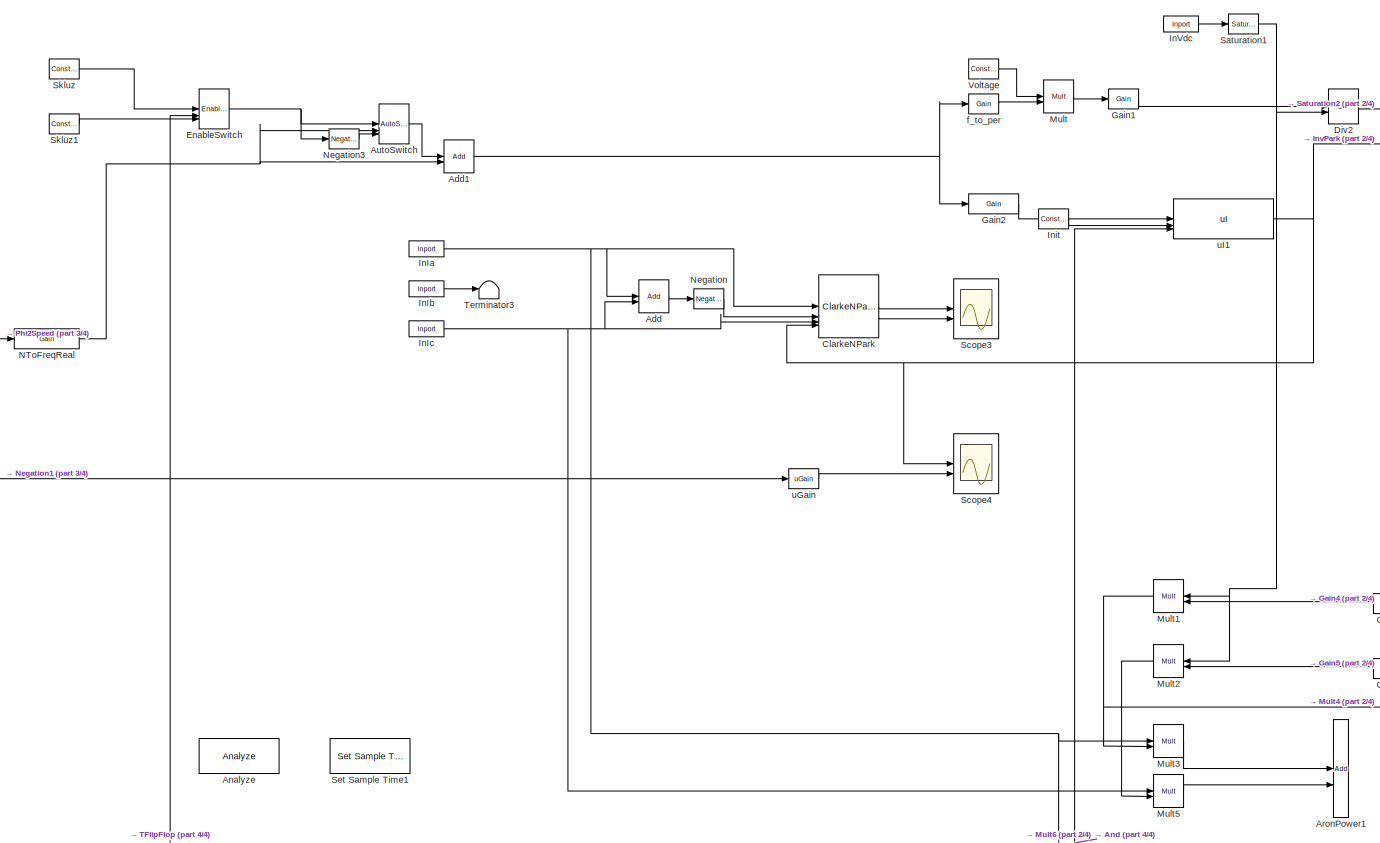
[diagram: root canvas - part 1/4, center side, full height]
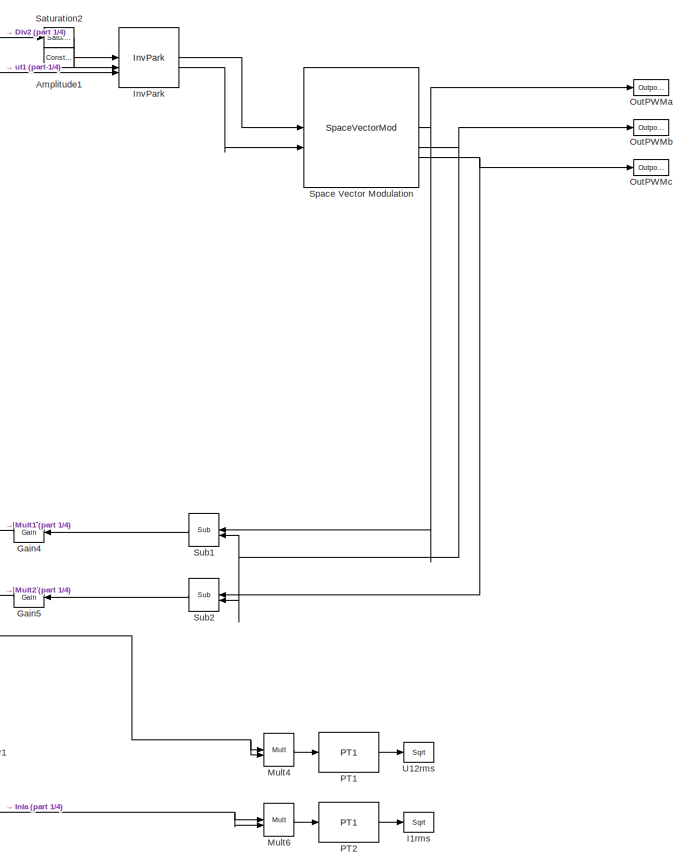
[diagram: root canvas - part 2/4, right side, full height]
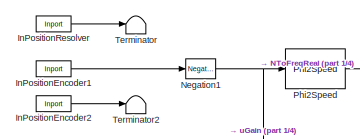
[diagram: root canvas - part 3/4, top left region]
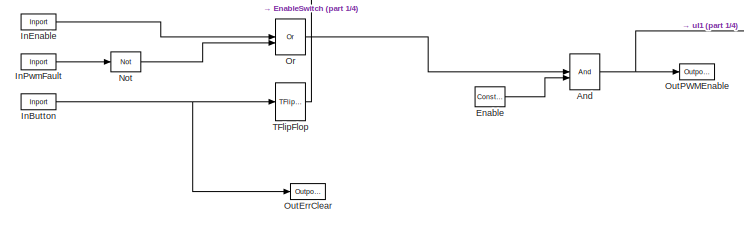
[diagram: root canvas - part 4/4, bottom left region]
MODEL slx_6c4d883dabac
KIND model
CONFIG AbsTol = auto
CONFIG EnableMultiTasking = on
CONFIG FixedStep = auto
CONFIG MaxStep = auto
CONFIG MinStep = auto
CONFIG RelTol = 1e-3
CONFIG SampleTimeConstraint = Unconstrained
CONFIG SolverName = ode45
CONFIG StartTime = 0.0
CONFIG StopTime = 10.0
BLOCK [Reference] Add  REF=Math/Add
  SourceBlock = Math/Add
  SourceProductName = X2C Math
  SourceType = X2C - Add
BLOCK [Reference] Add1  REF=Math/Add
  SourceBlock = Math/Add
  SourceProductName = X2C Math
  SourceType = X2C - Add
BLOCK [Reference] Amplitude1  REF=General/Constant
  SourceBlock = General/Constant
  SourceProductName = X2C General
  SourceType = X2C - Constant
BLOCK [Reference] Analyze  REF=Basic/Analyze
  SourceBlock = Basic/Analyze
  SourceProductName = X2C Basic
  SourceType = X2C System Block
BLOCK [Reference] And  REF=General/And
  SourceBlock = General/And
  SourceProductName = X2C General
  SourceType = X2C - And
BLOCK [Reference] AronPower1  REF=Math/Add
  SourceBlock = Math/Add
  SourceProductName = X2C Math
  SourceType = X2C - Add
BLOCK [Reference] AutoSwitch  REF=General/AutoSwitch
  SourceBlock = General/AutoSwitch
  SourceProductName = X2C General
  SourceType = X2C - AutoSwitch
BLOCK [Reference] ClarkeNPark  REF=MotorControl/ClarkeNPark
  SourceBlock = MotorControl/ClarkeNPark
  SourceProductName = X2C MotorControl
  SourceType = X2C - ClarkeNPark
BLOCK [Reference] Div2  REF=Math/Div
  SourceBlock = Math/Div
  SourceProductName = X2C Math
  SourceType = X2C - Div
BLOCK [Reference] Enable  REF=General/Constant
  SourceBlock = General/Constant
  SourceProductName = X2C General
  SourceType = X2C - Constant
BLOCK [Reference] EnableSwitch  REF=StateControl/EnableSwitch
  SourceBlock = StateControl/EnableSwitch
  SourceProductName = X2C StateControl
  SourceType = X2C - EnableSwitch
BLOCK [Reference] Gain1  REF=General/Gain
  SourceBlock = General/Gain
  SourceProductName = X2C General
  SourceType = X2C - Gain
BLOCK [Reference] Gain2  REF=General/Gain
  SourceBlock = General/Gain
  SourceProductName = X2C General
  SourceType = X2C - Gain
BLOCK [Reference] Gain4  REF=General/Gain
  SourceBlock = General/Gain
  SourceProductName = X2C General
  SourceType = X2C - Gain
BLOCK [Reference] Gain5  REF=General/Gain
  SourceBlock = General/Gain
  SourceProductName = X2C General
  SourceType = X2C - Gain
BLOCK [Reference] I1rms  REF=Math/Sqrt
  SourceBlock = Math/Sqrt
  SourceProductName = X2C Math
  SourceType = X2C - Sqrt
BLOCK [Reference] InButton  REF=General/Inport
  SourceBlock = General/Inport
  SourceProductName = X2C General
  SourceType = X2C - Inport
BLOCK [Reference] InEnable  REF=General/Inport
  SourceBlock = General/Inport
  SourceProductName = X2C General
  SourceType = X2C - Inport
BLOCK [Reference] InIa  REF=General/Inport
  SourceBlock = General/Inport
  SourceProductName = X2C General
  SourceType = X2C - Inport
BLOCK [Reference] InIb  REF=General/Inport
  SourceBlock = General/Inport
  SourceProductName = X2C General
  SourceType = X2C - Inport
BLOCK [Reference] InIc  REF=General/Inport
  SourceBlock = General/Inport
  SourceProductName = X2C General
  SourceType = X2C - Inport
BLOCK [Reference] InPositionEncoder1  REF=General/Inport
  SourceBlock = General/Inport
  SourceProductName = X2C General
  SourceType = X2C - Inport
BLOCK [Reference] InPositionEncoder2  REF=General/Inport
  SourceBlock = General/Inport
  SourceProductName = X2C General
  SourceType = X2C - Inport
BLOCK [Reference] InPositionResolver  REF=General/Inport
  SourceBlock = General/Inport
  SourceProductName = X2C General
  SourceType = X2C - Inport
BLOCK [Reference] InPwmFault  REF=General/Inport
  SourceBlock = General/Inport
  SourceProductName = X2C General
  SourceType = X2C - Inport
BLOCK [Reference] InVdc  REF=General/Inport
  SourceBlock = General/Inport
  SourceProductName = X2C General
  SourceType = X2C - Inport
BLOCK [Reference] Init  REF=General/Constant
  SourceBlock = General/Constant
  SourceProductName = X2C General
  SourceType = X2C - Constant
BLOCK [Reference] InvPark  REF=MotorControl/InvPark
  SourceBlock = MotorControl/InvPark
  SourceProductName = X2C MotorControl
  SourceType = X2C - InvPark
BLOCK [Reference] Mult  REF=Math/Mult
  SourceBlock = Math/Mult
  SourceProductName = X2C Math
  SourceType = X2C - Mult
BLOCK [Reference] Mult1  REF=Math/Mult
  SourceBlock = Math/Mult
  SourceProductName = X2C Math
  SourceType = X2C - Mult
BLOCK [Reference] Mult2  REF=Math/Mult
  SourceBlock = Math/Mult
  SourceProductName = X2C Math
  SourceType = X2C - Mult
BLOCK [Reference] Mult3  REF=Math/Mult
  SourceBlock = Math/Mult
  SourceProductName = X2C Math
  SourceType = X2C - Mult
BLOCK [Reference] Mult4  REF=Math/Mult
  SourceBlock = Math/Mult
  SourceProductName = X2C Math
  SourceType = X2C - Mult
BLOCK [Reference] Mult5  REF=Math/Mult
  SourceBlock = Math/Mult
  SourceProductName = X2C Math
  SourceType = X2C - Mult
BLOCK [Reference] Mult6  REF=Math/Mult
  SourceBlock = Math/Mult
  SourceProductName = X2C Math
  SourceType = X2C - Mult
BLOCK [Reference] NToFreqReal  REF=General/Gain
  SourceBlock = General/Gain
  SourceProductName = X2C General
  SourceType = X2C - Gain
BLOCK [Reference] Negation  REF=Math/Negation
  SourceBlock = Math/Negation
  SourceProductName = X2C Math
  SourceType = X2C - Negation
BLOCK [Reference] Negation1  REF=Math/Negation
  SourceBlock = Math/Negation
  SourceProductName = X2C Math
  SourceType = X2C - Negation
BLOCK [Reference] Negation3  REF=Math/Negation
  SourceBlock = Math/Negation
  SourceProductName = X2C Math
  SourceType = X2C - Negation
BLOCK [Reference] Not  REF=General/Not
  SourceBlock = General/Not
  SourceProductName = X2C General
  SourceType = X2C - Not
BLOCK [Reference] Or  REF=General/Or
  SourceBlock = General/Or
  SourceProductName = X2C General
  SourceType = X2C - Or
BLOCK [Reference] OutErrClear  REF=General/Outport
  SourceBlock = General/Outport
  SourceProductName = X2C General
  SourceType = X2C - Outport
BLOCK [Reference] OutPWMEnable  REF=General/Outport
  SourceBlock = General/Outport
  SourceProductName = X2C General
  SourceType = X2C - Outport
BLOCK [Reference] OutPWMa  REF=General/Outport
  SourceBlock = General/Outport
  SourceProductName = X2C General
  SourceType = X2C - Outport
BLOCK [Reference] OutPWMb  REF=General/Outport
  SourceBlock = General/Outport
  SourceProductName = X2C General
  SourceType = X2C - Outport
BLOCK [Reference] OutPWMc  REF=General/Outport
  SourceBlock = General/Outport
  SourceProductName = X2C General
  SourceType = X2C - Outport
BLOCK [Reference] PT1  REF=Control/PT1
  SourceBlock = Control/PT1
  SourceProductName = X2C Control
  SourceType = X2C - PT1
BLOCK [Reference] PT2  REF=Control/PT1
  SourceBlock = Control/PT1
  SourceProductName = X2C Control
  SourceType = X2C - PT1
BLOCK [Reference] Phi2Speed  REF=MotorControl/Phi2Speed
  SourceBlock = MotorControl/Phi2Speed
  SourceProductName = X2C MotorControl
  SourceType = X2C - Phi2Speed
BLOCK [Reference] Saturation1  REF=General/Saturation
  SourceBlock = General/Saturation
  SourceProductName = X2C General
  SourceType = X2C - Saturation
BLOCK [Reference] Saturation2  REF=General/Saturation
  SourceBlock = General/Saturation
  SourceProductName = X2C General
  SourceType = X2C - Saturation
BLOCK [Scope] Scope3
  Floating = off
  NameLocation = top
  NumInputPorts = 2
  ScopeSpecificationString = Simulink.scopes.TimeScopeBlockCfg('CurrentConfiguration', extmgr.ConfigurationSet(extmgr.Configuration('Core','General UI',true),extmgr.Configuration('Core','Source UI',true),extmgr.Configuration('Sources','WiredSimulink',true,'DataLoggingVariableName','ScopeData1'),extmgr.Configuration('Visuals','Time Domain',true,'SerializedDisplays',{struct('MinYLimReal','-0.45212','MaxYLimReal','2.25034','YLab...<+2044ch>
BLOCK [Scope] Scope4
  Floating = off
  NameLocation = top
  NumInputPorts = 2
  ScopeSpecificationString = Simulink.scopes.TimeScopeBlockCfg('CurrentConfiguration', extmgr.ConfigurationSet(extmgr.Configuration('Core','General UI',true),extmgr.Configuration('Core','Source UI',true),extmgr.Configuration('Sources','WiredSimulink',true),extmgr.Configuration('Visuals','Time Domain',true,'SerializedDisplays',{struct('MinYLimReal','-0.45212','MaxYLimReal','2.25034','YLabelReal','','MinYLimMag','0.00000','MaxY...<+2157ch>
BLOCK [Reference] Set Sample Time1  REF=Basic/Set Sample Time
  SourceBlock = Basic/Set Sample Time
  SourceProductName = X2C Basic
  SourceType = X2C System Block
BLOCK [Reference] Skluz  REF=General/Constant
  SourceBlock = General/Constant
  SourceProductName = X2C General
  SourceType = X2C - Constant
BLOCK [Reference] Skluz1  REF=General/Constant
  SourceBlock = General/Constant
  SourceProductName = X2C General
  SourceType = X2C - Constant
BLOCK [Reference] Space Vector Modulation  REF=MotorControl/SpaceVectorMod
  SourceBlock = MotorControl/SpaceVectorMod
  SourceProductName = X2C MotorControl
  SourceType = X2C - SpaceVectorMod
BLOCK [Reference] Sub1  REF=Math/Sub
  SourceBlock = Math/Sub
  SourceProductName = X2C Math
  SourceType = X2C - Sub
BLOCK [Reference] Sub2  REF=Math/Sub
  SourceBlock = Math/Sub
  SourceProductName = X2C Math
  SourceType = X2C - Sub
BLOCK [Reference] TFlipFlop  REF=StateControl/TFlipFlop
  SourceBlock = StateControl/TFlipFlop
  SourceProductName = X2C StateControl
  SourceType = X2C - TFlipFlop
BLOCK [Terminator] Terminator
BLOCK [Terminator] Terminator2
BLOCK [Terminator] Terminator3
BLOCK [Reference] U12rms  REF=Math/Sqrt
  SourceBlock = Math/Sqrt
  SourceProductName = X2C Math
  SourceType = X2C - Sqrt
BLOCK [Reference] Voltage  REF=General/Constant
  SourceBlock = General/Constant
  SourceProductName = X2C General
  SourceType = X2C - Constant
BLOCK [Reference] f_to_per  REF=General/Gain
  SourceBlock = General/Gain
  SourceProductName = X2C General
  SourceType = X2C - Gain
BLOCK [Reference] uGain  REF=General/uGain
  SourceBlock = General/uGain
  SourceProductName = X2C General
  SourceType = X2C - uGain
BLOCK [Reference] uI1  REF=Control/uI
  SourceBlock = Control/uI
  SourceProductName = X2C Control
  SourceType = X2C - uI
NET Add1:1 -> Gain2:1, f_to_per:1
LINE Add:1 -> Negation:1
LINE Amplitude1:1 -> InvPark:2
NET And:1 -> OutPWMEnable:1, uI1:3
LINE AutoSwitch:1 -> Add1:1
LINE ClarkeNPark:1 -> Scope3:1
LINE ClarkeNPark:2 -> Scope3:2
LINE Div2:1 -> Saturation2:1
LINE Enable:1 -> And:2
NET EnableSwitch:1 -> AutoSwitch:1, Negation3:1
LINE Gain1:1 -> Div2:1
LINE Gain2:1 -> uI1:1
LINE Gain4:1 -> Mult1:2
LINE Gain5:1 -> Mult2:2
NET InButton:1 -> OutErrClear:1, TFlipFlop:1
LINE InEnable:1 -> Or:1
NET InIa:1 -> Add:1, ClarkeNPark:1, Mult3:1, Mult6:1, Mult6:2
LINE InIb:1 -> Terminator3:1
NET InIc:1 -> Add:2, ClarkeNPark:3, Mult5:1
LINE InPositionEncoder1:1 -> Negation1:1
LINE InPositionEncoder2:1 -> Terminator2:1
LINE InPositionResolver:1 -> Terminator:1
LINE InPwmFault:1 -> Not:1
LINE InVdc:1 -> Saturation1:1
LINE Init:1 -> uI1:2
LINE InvPark:1 -> Space Vector Modulation:1
LINE InvPark:2 -> Space Vector Modulation:2
NET Mult1:1 -> Mult3:2, Mult4:1, Mult4:2
LINE Mult2:1 -> Mult5:2
LINE Mult3:1 -> AronPower1:1
LINE Mult4:1 -> PT1:1
LINE Mult5:1 -> AronPower1:2
LINE Mult6:1 -> PT2:1
LINE Mult:1 -> Gain1:1
NET NToFreqReal:1 -> Add1:2, AutoSwitch:2
NET Negation1:1 -> Phi2Speed:1, uGain:1
LINE Negation3:1 -> AutoSwitch:3
LINE Negation:1 -> ClarkeNPark:2
LINE Not:1 -> Or:2
LINE Or:1 -> And:1
LINE PT1:1 -> U12rms:1
LINE PT2:1 -> I1rms:1
LINE Phi2Speed:1 -> NToFreqReal:1
NET Saturation1:1 -> Div2:2, Mult1:1, Mult2:1
LINE Saturation2:1 -> InvPark:1
LINE Skluz1:1 -> EnableSwitch:3
LINE Skluz:1 -> EnableSwitch:1
NET Space Vector Modulation:1 -> OutPWMa:1, Sub1:1
NET Space Vector Modulation:2 -> OutPWMb:1, Sub1:2, Sub2:2
NET Space Vector Modulation:3 -> OutPWMc:1, Sub2:1
LINE Sub1:1 -> Gain4:1
LINE Sub2:1 -> Gain5:1
LINE TFlipFlop:1 -> EnableSwitch:2
LINE Voltage:1 -> Mult:1
LINE f_to_per:1 -> Mult:2
LINE uGain:1 -> Scope4:2
NET uI1:1 -> ClarkeNPark:4, InvPark:3, Scope4:1
note: NET lines group one-source signal fan-out (src -> all destinations, sorted); 1:1 wires keep LINE
